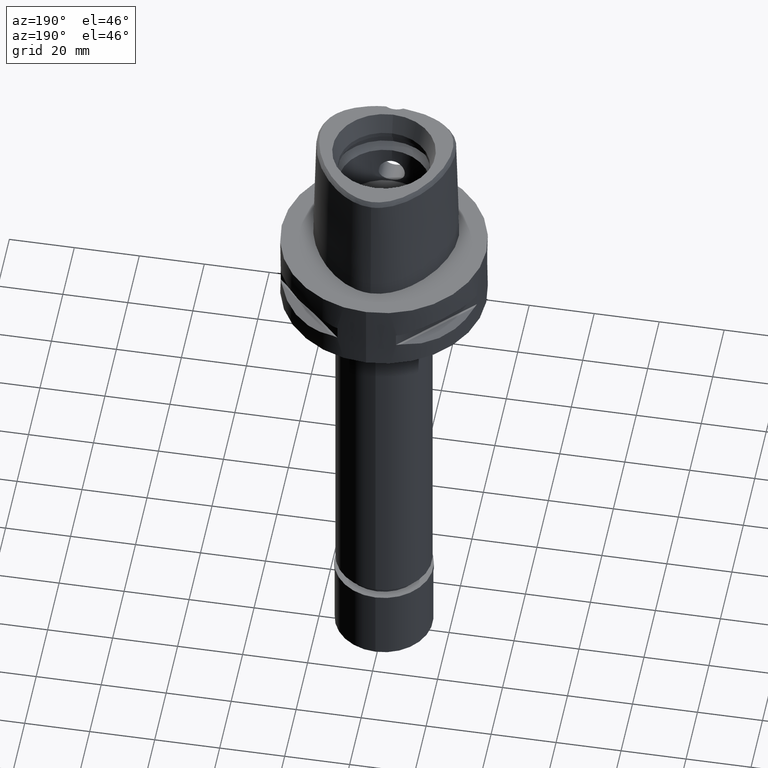
[diagram: clean part render]
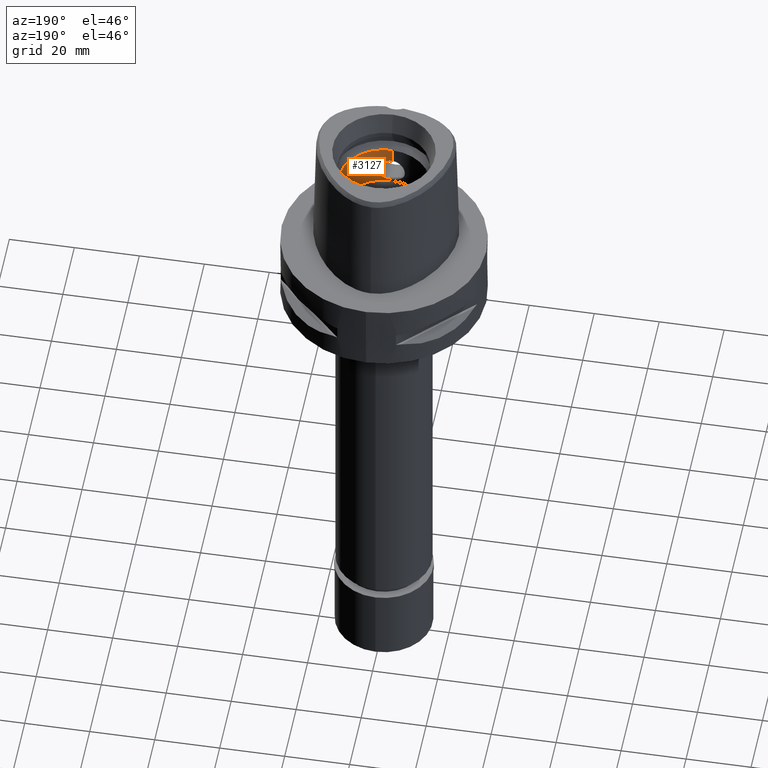
[diagram: same view with one face highlighted and labeled with its STEP entity id]
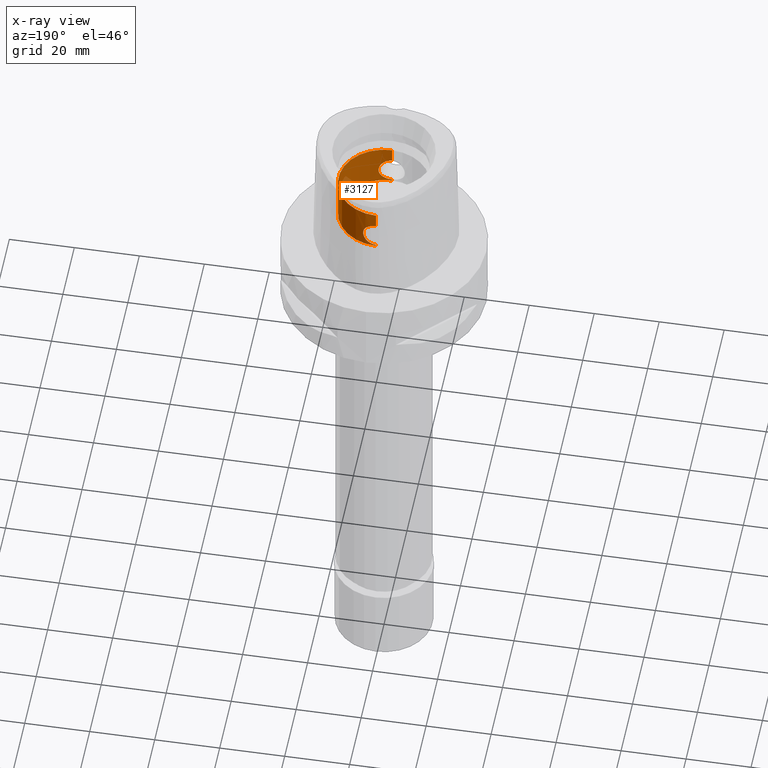
[diagram: x-ray of the same camera — body ghosted, the highlighted face saturated]
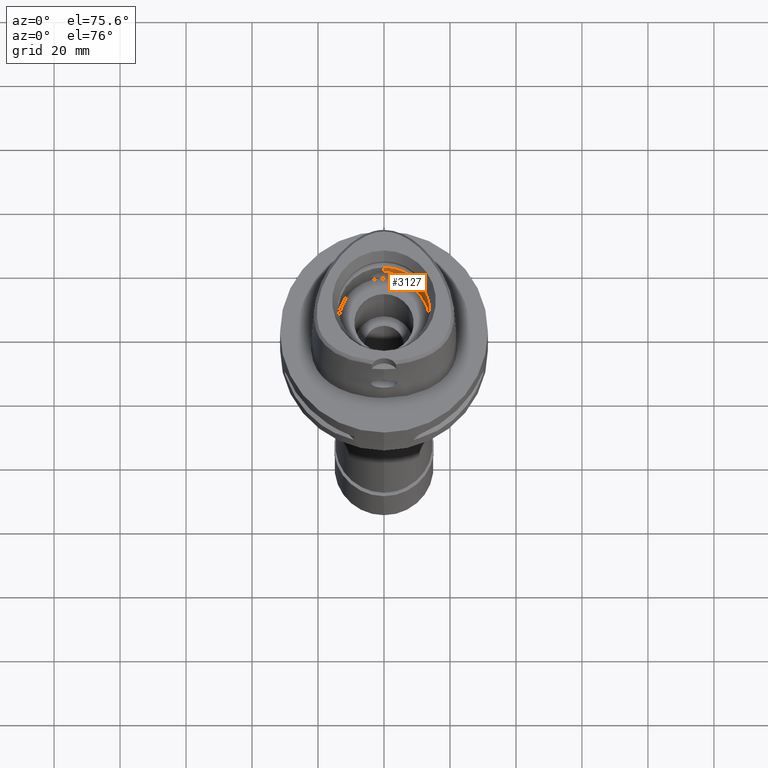
[diagram: same view with one face highlighted and labeled with its STEP entity id]
A machine part, auxiliary view. The second image highlights one B-rep face of the part: STEP entity #3127.
The next image is the same camera in x-ray: the body ghosted, the highlighted face saturated — about 9% of this face is hidden behind the body in this view.
A second angle (auxiliary view) of the same face is appended — the face is thin or edge-on in the first view.
In plain terms, the highlighted cylindrical surface (partial cylindrical patch) has radius 14 mm, axis along (0, 0, -1).
Its self-contained STEP definition (entity closure, byte-faithful):
#7 = CARTESIAN_POINT ( 'NONE',  ( 2.128132661560468097, -13.83734705126276943, 18.94611731529635890 ) ) ;
#27 = CARTESIAN_POINT ( 'NONE',  ( 1.419273682516925206, 13.92782810608995625, 11.70655701251878789 ) ) ;
#33 = CARTESIAN_POINT ( 'NONE',  ( 2.217825895405038938, -13.82320329824289473, 18.88877091521866092 ) ) ;
#42 = CARTESIAN_POINT ( 'NONE',  ( 2.128115661502098632, 13.83734960245050161, 12.05387220701158668 ) ) ;
#57 = CARTESIAN_POINT ( 'NONE',  ( 0.0000000000000000000, 14.00000000000000000, 11.00000000000000000 ) ) ;
#61 = CARTESIAN_POINT ( 'NONE',  ( 3.701448599127524108, 13.50196410077353448, 13.85577559946501047 ) ) ;
#71 = CARTESIAN_POINT ( 'NONE',  ( 3.641267411179716973, -13.51833533351320860, 17.27419309983596563 ) ) ;
#88 = CARTESIAN_POINT ( 'NONE',  ( 3.612092317030220379, 13.52616139818937846, 13.66702611687112956 ) ) ;
#89 = CARTESIAN_POINT ( 'NONE',  ( 3.300146341830308749, -13.60553517926693168, 17.84781835524496785 ) ) ;
#113 = CARTESIAN_POINT ( 'NONE',  ( 2.230267356648572896, 13.82120012601264136, 12.11940589182371220 ) ) ;
#124 = CARTESIAN_POINT ( 'NONE',  ( 2.619693227442611239, -13.75270887469176984, 18.58958572220459970 ) ) ;
#137 = CARTESIAN_POINT ( 'NONE',  ( 3.410721871959659257, 13.57817107781601074, 17.68404181484999071 ) ) ;
#169 = CARTESIAN_POINT ( 'NONE',  ( 3.253150413770078409, -13.61695205281290200, 17.91296083935737826 ) ) ;
#175 = CARTESIAN_POINT ( 'NONE',  ( 4.027167981726239354, -13.40875010521662780, 14.99686531048723204 ) ) ;
#192 = CARTESIAN_POINT ( 'NONE',  ( 2.474897425330298883, 13.77946391610721300, 18.70653994269108011 ) ) ;
#213 = CARTESIAN_POINT ( 'NONE',  ( 0.0000000000000000000, 14.00000000000000000, 19.55000000000000071 ) ) ;
#236 = CARTESIAN_POINT ( 'NONE',  ( 1.643124464775751692, -13.90317117702391059, 11.79805916109248187 ) ) ;
#238 = CARTESIAN_POINT ( 'NONE',  ( 3.377713256182831802, 13.58640893255668480, 17.73462749921339565 ) ) ;
#254 = CARTESIAN_POINT ( 'NONE',  ( 1.499090398657561440, -13.91942988264788639, 19.26238249073475473 ) ) ;
#278 = CARTESIAN_POINT ( 'NONE',  ( 4.049890164046381358, -13.40142381086357126, 15.25144457815123467 ) ) ;
#281 = CARTESIAN_POINT ( 'NONE',  ( 1.994209348676432958, -13.85732070570753471, 19.02567586479972661 ) ) ;
#290 = CARTESIAN_POINT ( 'NONE',  ( 3.410743496005227193, -13.57816568317720929, 13.31599196305548993 ) ) ;
#313 = CARTESIAN_POINT ( 'NONE',  ( 3.144649004617911192, -13.64249969677155683, 12.94694166698170257 ) ) ;
#343 = VECTOR ( 'NONE', #2762, 1000.000000000000000 ) ;
#345 = CARTESIAN_POINT ( 'NONE',  ( 3.386236333451225544, -13.58428775399380228, 13.27830608082098607 ) ) ;
#359 = CARTESIAN_POINT ( 'NONE',  ( 1.210730804332083466, -13.94747211364479789, 19.36537636554719910 ) ) ;
#367 = CARTESIAN_POINT ( 'NONE',  ( 3.737887346439032754, -13.49190726130635909, 17.05908841074957039 ) ) ;
#398 = CARTESIAN_POINT ( 'NONE',  ( 3.362135645915919735, 13.59026426608101623, 13.24199978628648466 ) ) ;
#414 = CARTESIAN_POINT ( 'NONE',  ( 3.731972597725385477, -13.49354487605745589, 17.07319389047551539 ) ) ;
#425 = CARTESIAN_POINT ( 'NONE',  ( 1.017647129622376134, 13.96323008892529138, 11.57763991488771715 ) ) ;
#443 = CARTESIAN_POINT ( 'NONE',  ( 1.467188112033413816, 13.92282148873381864, 11.72506250693289864 ) ) ;
#452 = CARTESIAN_POINT ( 'NONE',  ( 3.362175151425315534, -13.59025468045932072, 17.75794138953405366 ) ) ;
#466 = CARTESIAN_POINT ( 'NONE',  ( 2.083402352693820347, 13.84411649686240153, 12.02679904731587435 ) ) ;
#480 = EDGE_CURVE ( 'NONE', #4492, #2264, #4187, .T. ) ;
#495 = CARTESIAN_POINT ( 'NONE',  ( 3.361880068163155766, 13.59032751575134057, 13.24162249144547943 ) ) ;
#514 = VERTEX_POINT ( 'NONE', #2345 ) ;
#522 = CARTESIAN_POINT ( 'NONE',  ( 3.557088666341913452, 13.54068383479801696, 17.43752651043655888 ) ) ;
#542 = CARTESIAN_POINT ( 'NONE',  ( 3.471388650637377449, 13.56282351116202278, 17.58642340598301246 ) ) ;
#544 = CARTESIAN_POINT ( 'NONE',  ( 3.217051634125119630, -13.62560167973527925, 17.96121095383637112 ) ) ;
#570 = CARTESIAN_POINT ( 'NONE',  ( 1.832682128947450639, 13.87954668815114267, 19.11223895308327414 ) ) ;
#597 = CARTESIAN_POINT ( 'NONE',  ( 1.600065394692234744, 13.90814645047113807, 19.22055538723221702 ) ) ;
#605 = CARTESIAN_POINT ( 'NONE',  ( 0.0000000000000000000, 0.0000000000000000000, 39.89999999999999858 ) ) ;
#621 = CARTESIAN_POINT ( 'NONE',  ( 2.130881178372290297, -13.83743566613834908, 12.05283858997449542 ) ) ;
#630 = DIRECTION ( 'NONE',  ( 0.0000000000000000000, 0.0000000000000000000, 1.000000000000000000 ) ) ;
#635 = CARTESIAN_POINT ( 'NONE',  ( 0.0000000000000000000, -14.00000000000000000, 19.55000000000000071 ) ) ;
#650 = CARTESIAN_POINT ( 'NONE',  ( 0.4996170308321704057, -14.00000000000000533, 11.45000000000000107 ) ) ;
#668 = CARTESIAN_POINT ( 'NONE',  ( 1.935032715135688530, -13.86568800702951521, 19.05844582712813562 ) ) ;
#673 = ORIENTED_EDGE ( 'NONE', *, *, #480, .F. ) ;
#682 = CARTESIAN_POINT ( 'NONE',  ( 3.649300474006761608, -13.51628050930860425, 13.73856294209829443 ) ) ;
#706 = CARTESIAN_POINT ( 'NONE',  ( 0.0000000000000000000, 14.00000000000000000, 19.55000000000000071 ) ) ;
#727 = CARTESIAN_POINT ( 'NONE',  ( 3.754236443715380567, -13.48734669256756113, 13.98069631228726095 ) ) ;
#741 = VECTOR ( 'NONE', #2009, 1000.000000000000000 ) ;
#778 = DIRECTION ( 'NONE',  ( 0.0000000000000000000, 1.000000000000000000, 0.0000000000000000000 ) ) ;
#784 = CARTESIAN_POINT ( 'NONE',  ( 3.300115213668325165, 13.60554254247755246, 13.15213791935524590 ) ) ;
#804 = CARTESIAN_POINT ( 'NONE',  ( 3.681888265789251768, 13.50730898608306596, 13.81262890101244345 ) ) ;
#831 = CARTESIAN_POINT ( 'NONE',  ( 2.225288147325894528, 13.82200341650443498, 12.11612460655873313 ) ) ;
#841 = CARTESIAN_POINT ( 'NONE',  ( 3.518056051408226637, -13.55098508629760801, 17.51091968135015264 ) ) ;
#848 = CARTESIAN_POINT ( 'NONE',  ( 2.824278146734877204, -13.71216806335186611, 18.40282419414445059 ) ) ;
#854 = CARTESIAN_POINT ( 'NONE',  ( 3.740349717813418629, 13.49122537259350985, 13.94682241177603288 ) ) ;
#855 = CARTESIAN_POINT ( 'NONE',  ( 3.359058616896186233, -13.59102609449553611, 17.76257193801029999 ) ) ;
#879 = CARTESIAN_POINT ( 'NONE',  ( 3.518019159262221862, 13.55099469856486749, 13.48901570195362432 ) ) ;
#883 = CARTESIAN_POINT ( 'NONE',  ( 3.927475894208720675, -13.43840014692434259, 16.52342187618989300 ) ) ;
#888 = CYLINDRICAL_SURFACE ( 'NONE', #3665, 14.00000000000000000 ) ;
#937 = CARTESIAN_POINT ( 'NONE',  ( 3.649287754606132417, 13.51628378879347814, 17.26146357314931024 ) ) ;
#942 = CARTESIAN_POINT ( 'NONE',  ( 3.850575600135912158, -13.46063562734230601, 16.78609245255456628 ) ) ;
#961 = CARTESIAN_POINT ( 'NONE',  ( 3.267839164474154234, 13.61368337661979133, 17.89612675440678657 ) ) ;
#963 = CARTESIAN_POINT ( 'NONE',  ( 3.321853759922872129, -13.60021613420336095, 17.81705094764194186 ) ) ;
#992 = CARTESIAN_POINT ( 'NONE',  ( 2.286392394009954199, 13.81203773452794792, 18.84292893667480584 ) ) ;
#1011 = CARTESIAN_POINT ( 'NONE',  ( 2.705656092646467226, -13.73601936352752340, 18.51386516677751359 ) ) ;
#1022 = CARTESIAN_POINT ( 'NONE',  ( 3.702139074867384139, -13.50182043942416854, 13.85345734750486990 ) ) ;
#1023 = CARTESIAN_POINT ( 'NONE',  ( 2.935444872375262637, 13.68884853175270422, 18.29060286011752723 ) ) ;
#1027 = CARTESIAN_POINT ( 'NONE',  ( 0.0000000000000000000, -14.00000000000000000, 11.44999999999999929 ) ) ;
#1032 = EDGE_CURVE ( 'NONE', #514, #1204, #2256, .T. ) ;
#1035 = CARTESIAN_POINT ( 'NONE',  ( 4.050109039351203144, -13.40137442886974917, 15.74496307463717493 ) ) ;
#1050 = CARTESIAN_POINT ( 'NONE',  ( 1.571471244912584497, -13.91140584751454234, 11.76727716385062372 ) ) ;
#1056 = VERTEX_POINT ( 'NONE', #1734 ) ;
#1061 = CARTESIAN_POINT ( 'NONE',  ( 0.0000000000000000000, 14.00000000000000000, 11.00000000000000000 ) ) ;
#1078 = VERTEX_POINT ( 'NONE', #1702 ) ;
#1079 = CARTESIAN_POINT ( 'NONE',  ( 2.010509632126467050, -13.85534039797923711, 11.98171533897966334 ) ) ;
#1107 = CARTESIAN_POINT ( 'NONE',  ( 2.632435958151018163, -13.75053331397524126, 12.41927859746139440 ) ) ;
#1129 = CARTESIAN_POINT ( 'NONE',  ( 3.864698997106321698, -13.45627842727308376, 14.28708901172944046 ) ) ;
#1142 = CARTESIAN_POINT ( 'NONE',  ( 1.017639181789193437, -13.96323047955135799, 19.42236212087125935 ) ) ;
#1187 = DIRECTION ( 'NONE',  ( 0.0000000000000000000, 0.0000000000000000000, -1.000000000000000000 ) ) ;
#1190 = DIRECTION ( 'NONE',  ( 0.0000000000000000000, 0.0000000000000000000, 1.000000000000000000 ) ) ;
#1194 = CARTESIAN_POINT ( 'NONE',  ( 3.446439376995800608, 13.56939223702177699, 13.36783492912207905 ) ) ;
#1204 = VERTEX_POINT ( 'NONE', #706 ) ;
#1212 = CARTESIAN_POINT ( 'NONE',  ( 4.027216825694031499, 13.40877103518722357, 14.99603235332364903 ) ) ;
#1234 = CARTESIAN_POINT ( 'NONE',  ( 3.217025596349118555, 13.62560769370299951, 13.03875506105696758 ) ) ;
#1259 = CARTESIAN_POINT ( 'NONE',  ( 3.354680329558042740, 13.59210945296616124, 13.23093247310055709 ) ) ;
#1260 = CARTESIAN_POINT ( 'NONE',  ( 3.092415008874853211, -13.65466569417765008, 18.11866219977504144 ) ) ;
#1271 = CARTESIAN_POINT ( 'NONE',  ( 3.446478207128052862, -13.56938250736487639, 17.63210248792501034 ) ) ;
#1281 = EDGE_CURVE ( 'NONE', #1778, #3125, #2539, .T. ) ;
#1282 = CARTESIAN_POINT ( 'NONE',  ( 1.935022422099377248, 13.86568947271855201, 11.94154862979159937 ) ) ;
#1283 = CARTESIAN_POINT ( 'NONE',  ( 3.344238891824591331, -13.59469201712063224, 17.78446291341362695 ) ) ;
#1301 = CARTESIAN_POINT ( 'NONE',  ( 3.329833399432507335, 13.59830740143285155, 17.80689756936500245 ) ) ;
#1353 = CARTESIAN_POINT ( 'NONE',  ( 3.098494805694566256, 13.65307097543445813, 18.10922060507405362 ) ) ;
#1375 = CARTESIAN_POINT ( 'NONE',  ( 2.255317399664305000, 13.81714987027313235, 18.86393579140712973 ) ) ;
#1430 = CARTESIAN_POINT ( 'NONE',  ( 3.792123985366229633, -13.47677720437101279, 14.07719458706809412 ) ) ;
#1453 = CARTESIAN_POINT ( 'NONE',  ( 3.381275431635352380, -13.58552310374970595, 13.27076317276037720 ) ) ;
#1528 = CARTESIAN_POINT ( 'NONE',  ( 3.750535583141483720, -13.48837563529048467, 13.97158931176262264 ) ) ;
#1588 = CARTESIAN_POINT ( 'NONE',  ( 2.564495781835727684, 13.76306347781942740, 12.36466282433596042 ) ) ;
#1607 = CARTESIAN_POINT ( 'NONE',  ( 1.643405570493256196, 13.90359095056343719, 11.79642487328022149 ) ) ;
#1628 = CARTESIAN_POINT ( 'NONE',  ( 3.792115437646679243, 13.47677934324684657, 16.92282825343409058 ) ) ;
#1657 = CARTESIAN_POINT ( 'NONE',  ( 0.2481266265099588697, 14.00000000000000000, 11.44999999999999929 ) ) ;
#1677 = CARTESIAN_POINT ( 'NONE',  ( 2.837973772893474411, 13.70934612522084173, 12.61054438063453098 ) ) ;
#1702 = CARTESIAN_POINT ( 'NONE',  ( 0.0000000000000000000, 14.00000000000000000, 24.19999999999999929 ) ) ;
#1734 = CARTESIAN_POINT ( 'NONE',  ( 0.0000000000000000000, -14.00000000000000000, 24.19999999999999929 ) ) ;
#1761 = CARTESIAN_POINT ( 'NONE',  ( 2.749412118830250940, 13.72794699207909908, 18.47891641197558243 ) ) ;
#1778 = VERTEX_POINT ( 'NONE', #57 ) ;
#1786 = CARTESIAN_POINT ( 'NONE',  ( 1.559041427489886278, 13.91280564626705818, 19.23793945981500997 ) ) ;
#1815 = CARTESIAN_POINT ( 'NONE',  ( 2.903830259282267345, -13.69557610160722660, 12.67649343714048804 ) ) ;
#1864 = CARTESIAN_POINT ( 'NONE',  ( 3.098515382225266901, -13.65306636109957594, 12.89080379894812900 ) ) ;
#1881 = ORIENTED_EDGE ( 'NONE', *, *, #1281, .T. ) ;
#1890 = CARTESIAN_POINT ( 'NONE',  ( 3.267860857267358643, -13.61367823512106767, 13.10390269945182773 ) ) ;
#1897 = CIRCLE ( 'NONE', #4155, 14.00000000000000000 ) ;
#1916 = CARTESIAN_POINT ( 'NONE',  ( 3.393648836096402555, -13.58244002077571011, 13.28961777952453183 ) ) ;
#1952 = LINE ( 'NONE', #4459, #3675 ) ;
#1968 = CARTESIAN_POINT ( 'NONE',  ( 3.737862436382984210, 13.49191471466118131, 13.94085186772397122 ) ) ;
#1993 = CARTESIAN_POINT ( 'NONE',  ( 2.206585077432667852, 13.82500562469161487, 12.10388135703218460 ) ) ;
#2009 = DIRECTION ( 'NONE',  ( 0.0000000000000000000, 0.0000000000000000000, 1.000000000000000000 ) ) ;
#2012 = CARTESIAN_POINT ( 'NONE',  ( 2.749405349986303371, 13.72738952680676761, 12.52574890524282303 ) ) ;
#2023 = CARTESIAN_POINT ( 'NONE',  ( 3.612125191162198767, -13.52615234759679552, 17.33290907843088036 ) ) ;
#2035 = CARTESIAN_POINT ( 'NONE',  ( 1.994196793350470953, 13.85732250606946003, 11.97431708272922002 ) ) ;
#2055 = CARTESIAN_POINT ( 'NONE',  ( 0.0000000000000000000, 0.0000000000000000000, 24.19999999999999929 ) ) ;
#2061 = CARTESIAN_POINT ( 'NONE',  ( 1.499100513058812201, 13.91942902670013638, 11.73762153891946447 ) ) ;
#2085 = CARTESIAN_POINT ( 'NONE',  ( 2.010501717821064460, 13.85534156541368667, 19.01828921528356986 ) ) ;
#2105 = ORIENTED_EDGE ( 'NONE', *, *, #4786, .F. ) ;
#2109 = CARTESIAN_POINT ( 'NONE',  ( 1.686542341523468602, 13.89794981159688980, 19.18226932052732536 ) ) ;
#2119 = CARTESIAN_POINT ( 'NONE',  ( 2.225307842472947772, -13.82200032481087959, 18.88386244170613537 ) ) ;
#2141 = CARTESIAN_POINT ( 'NONE',  ( 1.643112089889030569, 13.90317243032712291, 19.20194634168781533 ) ) ;
#2164 = CARTESIAN_POINT ( 'NONE',  ( 0.4996109250117751199, 13.99999999999999822, 19.54999999999999005 ) ) ;
#2173 = DIRECTION ( 'NONE',  ( 0.0000000000000000000, -1.000000000000000000, 0.0000000000000000000 ) ) ;
#2192 = CARTESIAN_POINT ( 'NONE',  ( 3.377736576013190994, -13.58640317541479092, 13.26540774977146775 ) ) ;
#2224 = CARTESIAN_POINT ( 'NONE',  ( 0.0000000000000000000, -14.00000000000000000, 11.44999999999999929 ) ) ;
#2256 = B_SPLINE_CURVE_WITH_KNOTS ( 'NONE', 3,
 ( #4658, #1657, #3514, #2734, #425, #3961, #3182, #27, #443, #2061, #3985, #1607, #2351, #1282, #2035, #466, #42, #4368, #1993, #3536, #831, #113, #4723, #2827, #1588, #3941, #3607, #2012, #3157, #3582, #1677, #2804, #4280, #1234, #3138, #784, #2418, #2398, #1259, #3895, #495, #398, #1194, #879, #88, #3208, #804, #61, #4699, #4348, #1968, #854, #4679, #4747, #1212, #2448, #2756, #4301, #2374, #3923, #2779, #4328, #1628, #3560, #3309, #2899, #4772, #2476, #937, #522, #2547, #542, #4441, #137, #3229, #2959, #4496, #238, #1301, #961, #3286, #1353, #2920, #2877, #1023, #3684, #1761, #2498, #192, #4092, #4466, #4845, #992, #3706, #2521, #2849, #1375, #4064, #2085, #570, #3255, #2109, #2141, #597, #4392, #1786, #3655, #2164, #213 ),
 .UNSPECIFIED., .F., .F.,
 ( 4, 2, 2, 1, 1, 2, 2, 2, 2, 1, 1, 1, 2, 2, 2, 2, 1, 2, 2, 2, 2, 1, 1, 1, 2, 2, 2, 2, 1, 1, 2, 2, 2, 2, 2, 2, 1, 1, 1, 2, 2, 2, 2, 1, 1, 1, 2, 2, 2, 2, 2, 2, 2, 2, 1, 1, 1, 2, 2, 2, 2, 1, 2, 2, 4 ),
 ( 0.0000000000000000000, 0.06250000000002138567, 0.09375000000003208545, 0.1093750000000373868, 0.1171875000000400235, 0.1210937500000413142, 0.1250000000000425771, 0.1562500000000529021, 0.1718750000000581479, 0.1796875000000608402, 0.1835937500000622002, 0.1855468750000628664, 0.1865234375000631162, 0.1875000000000633660, 0.2187500000000720257, 0.2343750000000762446, 0.2421875000000783817, 0.2460937500000794087, 0.2500000000000804357, 0.2812500000000883738, 0.2968750000000922040, 0.3046875000000943134, 0.3085937500000953126, 0.3105468750000957567, 0.3115234375000957012, 0.3125000000000956457, 0.3437500000000897615, 0.3593750000000867639, 0.3671875000000850986, 0.3710937500000843214, 0.3730468750000841549, 0.3750000000000839884, 0.4375000000000763833, 0.5000000000000687228, 0.5625000000000610623, 0.5937500000000568434, 0.6093750000000547340, 0.6171875000000537348, 0.6210937500000535127, 0.6230468750000534017, 0.6250000000000532907, 0.6562500000000528466, 0.6718750000000526246, 0.6796875000000521805, 0.6835937500000519584, 0.6855468750000521805, 0.6865234375000519584, 0.6875000000000517364, 0.7187500000000504041, 0.7343750000000500711, 0.7421875000000499600, 0.7500000000000498490, 0.7812500000000496270, 0.7968750000000497380, 0.8046875000000501821, 0.8085937500000504041, 0.8105468750000504041, 0.8115234375000504041, 0.8125000000000504041, 0.8437500000000428546, 0.8593750000000391909, 0.8671875000000375255, 0.8710937500000365263, 0.8750000000000355271, 1.000000000000000000 ),
 .UNSPECIFIED. ) ;
#2264 = VERTEX_POINT ( 'NONE', #1027 ) ;
#2295 = CARTESIAN_POINT ( 'NONE',  ( 2.474909158876553938, -13.77946166284112017, 12.29346908423364582 ) ) ;
#2333 = ORIENTED_EDGE ( 'NONE', *, *, #2795, .T. ) ;
#2345 = CARTESIAN_POINT ( 'NONE',  ( 0.0000000000000000000, 14.00000000000000000, 11.44999999999999929 ) ) ;
#2351 = CARTESIAN_POINT ( 'NONE',  ( 1.758911448488973184, 13.88947925419896201, 11.84948192320104532 ) ) ;
#2357 = CARTESIAN_POINT ( 'NONE',  ( 2.206604282614726298, -13.82500263684417341, 18.89610616580772273 ) ) ;
#2374 = CARTESIAN_POINT ( 'NONE',  ( 3.953315574815617683, 13.43069190713402961, 16.38937041772095071 ) ) ;
#2398 = CARTESIAN_POINT ( 'NONE',  ( 3.344202712280511136, 13.59470072215733438, 13.21548413948281997 ) ) ;
#2418 = CARTESIAN_POINT ( 'NONE',  ( 3.321820541935854187, 13.60022405027051562, 13.18290148898179837 ) ) ;
#2430 = CARTESIAN_POINT ( 'NONE',  ( 3.681917144197214498, -13.50730066061284873, 17.18730806969945135 ) ) ;
#2448 = CARTESIAN_POINT ( 'NONE',  ( 4.050104837865987406, 13.40137507185002264, 15.25494482419060205 ) ) ;
#2454 = CARTESIAN_POINT ( 'NONE',  ( 4.027223470520464588, -13.40876944169245810, 16.00391502730491311 ) ) ;
#2476 = CARTESIAN_POINT ( 'NONE',  ( 3.702127444390315159, 13.50182339615068727, 17.14656876326777279 ) ) ;
#2498 = CARTESIAN_POINT ( 'NONE',  ( 2.632421440604336027, 13.75053619292203422, 18.58073368517403168 ) ) ;
#2521 = CARTESIAN_POINT ( 'NONE',  ( 2.261340657161257095, 13.81616386827182019, 18.85988797640481351 ) ) ;
#2539 = CIRCLE ( 'NONE', #4973, 14.00000000000000000 ) ;
#2547 = CARTESIAN_POINT ( 'NONE',  ( 3.524199374407259722, 13.54926875963957933, 17.49682897130887227 ) ) ;
#2569 = CARTESIAN_POINT ( 'NONE',  ( 2.993295809226349746, -13.67635858825579653, 12.77154234762751095 ) ) ;
#2593 = CARTESIAN_POINT ( 'NONE',  ( 1.559056483625745448, -13.91280418779705563, 11.76206681924257680 ) ) ;
#2609 = CARTESIAN_POINT ( 'NONE',  ( 0.2481241771357211301, -14.00000000000000000, 19.54999999999999716 ) ) ;
#2626 = CARTESIAN_POINT ( 'NONE',  ( 1.600078814865037113, -13.90814512833036964, 11.77945038585449922 ) ) ;
#2651 = ORIENTED_EDGE ( 'NONE', *, *, #4313, .T. ) ;
#2652 = CARTESIAN_POINT ( 'NONE',  ( 2.255326728032801320, -13.81714821576336760, 12.13607046265439138 ) ) ;
#2674 = CARTESIAN_POINT ( 'NONE',  ( 3.329855790059505605, -13.59830196913217470, 13.19313464255487389 ) ) ;
#2685 = VECTOR ( 'NONE', #630, 1000.000000000000000 ) ;
#2731 = DIRECTION ( 'NONE',  ( 0.0000000000000000000, -1.000000000000000000, 0.0000000000000000000 ) ) ;
#2734 = CARTESIAN_POINT ( 'NONE',  ( 0.8886602406458201653, 13.97198482965736588, 11.54653314444766821 ) ) ;
#2743 = CARTESIAN_POINT ( 'NONE',  ( 0.0000000000000000000, -14.00000000000000000, 11.00000000000000000 ) ) ;
#2756 = CARTESIAN_POINT ( 'NONE',  ( 4.049894426081060317, 13.40142315477328694, 15.74850829864217161 ) ) ;
#2762 = DIRECTION ( 'NONE',  ( 0.0000000000000000000, 0.0000000000000000000, 1.000000000000000000 ) ) ;
#2779 = CARTESIAN_POINT ( 'NONE',  ( 3.864694685434272969, 13.45627952657940796, 16.71292491331624319 ) ) ;
#2795 = EDGE_CURVE ( 'NONE', #4492, #1056, #4744, .T. ) ;
#2804 = CARTESIAN_POINT ( 'NONE',  ( 2.987551070598235103, 13.67820116345343351, 12.75916637442935020 ) ) ;
#2805 = CARTESIAN_POINT ( 'NONE',  ( 3.354718119046004254, -13.59210031745213776, 17.76901166033502477 ) ) ;
#2818 = EDGE_CURVE ( 'NONE', #1056, #1078, #1897, .T. ) ;
#2822 = CARTESIAN_POINT ( 'NONE',  ( 0.0000000000000000000, -14.00000000000000000, 19.55000000000000071 ) ) ;
#2827 = CARTESIAN_POINT ( 'NONE',  ( 2.407026743236367672, 13.79179092510370097, 12.24014823374410454 ) ) ;
#2837 = CARTESIAN_POINT ( 'NONE',  ( 3.361919059606512050, -13.59031805818508332, 17.75831946435189579 ) ) ;
#2839 = ORIENTED_EDGE ( 'NONE', *, *, #1032, .F. ) ;
#2849 = CARTESIAN_POINT ( 'NONE',  ( 2.256421358878216488, 13.81696909001792939, 18.86319363595353593 ) ) ;
#2877 = CARTESIAN_POINT ( 'NONE',  ( 2.993275682879698252, 13.67636296169212606, 18.22847972466929889 ) ) ;
#2899 = CARTESIAN_POINT ( 'NONE',  ( 3.754225769600867846, 13.48734939608367966, 17.01933006533278814 ) ) ;
#2920 = CARTESIAN_POINT ( 'NONE',  ( 3.020660456626143464, 13.67036005578519386, 18.19808468408423963 ) ) ;
#2959 = CARTESIAN_POINT ( 'NONE',  ( 3.386213530919897519, 13.58429339872629527, 17.72172867399999774 ) ) ;
#2980 = CARTESIAN_POINT ( 'NONE',  ( 2.425356293155605414, -13.78827839657718890, 12.25602180728359158 ) ) ;
#2996 = CARTESIAN_POINT ( 'NONE',  ( 1.419263858817291446, -13.92782887280988646, 19.29344666032362099 ) ) ;
#3033 = CARTESIAN_POINT ( 'NONE',  ( 3.471407568666792454, -13.56281871367385605, 13.41360808481812228 ) ) ;
#3058 = CARTESIAN_POINT ( 'NONE',  ( 3.524216153033390420, -13.54926445638730925, 13.50320070291675734 ) ) ;
#3091 = CARTESIAN_POINT ( 'NONE',  ( 1.467178111786428429, -13.92282230864165982, 19.27494137944280794 ) ) ;
#3108 = CARTESIAN_POINT ( 'NONE',  ( 0.0000000000000000000, 0.0000000000000000000, 11.00000000000000000 ) ) ;
#3122 = CARTESIAN_POINT ( 'NONE',  ( 0.0000000000000000000, -14.00000000000000000, 19.55000000000000071 ) ) ;
#3125 = VERTEX_POINT ( 'NONE', #4374 ) ;
#3127 = ADVANCED_FACE ( 'NONE', ( #4474 ), #888, .F. ) ;
#3138 = CARTESIAN_POINT ( 'NONE',  ( 3.253122838619350254, 13.61695847484784849, 13.08700209496323019 ) ) ;
#3157 = CARTESIAN_POINT ( 'NONE',  ( 2.794188265665984883, 13.71831884113747613, 12.56820068599706985 ) ) ;
#3182 = CARTESIAN_POINT ( 'NONE',  ( 1.307187133397777368, 13.93893568339380096, 11.66569962606505406 ) ) ;
#3208 = CARTESIAN_POINT ( 'NONE',  ( 3.641236061999908014, 13.51834413261587109, 13.72574250724094469 ) ) ;
#3229 = CARTESIAN_POINT ( 'NONE',  ( 3.393626394335426788, 13.58244558944580405, 17.71041667753680571 ) ) ;
#3236 = CARTESIAN_POINT ( 'NONE',  ( 2.230287417959641694, -13.82119696819911958, 18.88058087293834930 ) ) ;
#3255 = CARTESIAN_POINT ( 'NONE',  ( 1.773859858298503012, 13.88717310935475524, 19.14143527715514992 ) ) ;
#3265 = CARTESIAN_POINT ( 'NONE',  ( 2.407040127156084175, -13.79178862307484899, 18.75984205953191264 ) ) ;
#3286 = CARTESIAN_POINT ( 'NONE',  ( 3.144628172867338201, 13.64250443836072435, 18.05308396090352474 ) ) ;
#3292 = DIRECTION ( 'NONE',  ( 0.0000000000000000000, 0.0000000000000000000, -1.000000000000000000 ) ) ;
#3309 = CARTESIAN_POINT ( 'NONE',  ( 3.760688074393179203, 13.48555087701916833, 17.00326317844757540 ) ) ;
#3363 = CARTESIAN_POINT ( 'NONE',  ( 1.832691376668475369, -13.87954557477466722, 11.88776574650866991 ) ) ;
#3376 = CARTESIAN_POINT ( 'NONE',  ( 1.516899316939854581, -13.91750090884298352, 19.25522928305483816 ) ) ;
#3388 = CARTESIAN_POINT ( 'NONE',  ( 2.268773195248865004, -13.81494468101088557, 12.14511832100865263 ) ) ;
#3401 = CARTESIAN_POINT ( 'NONE',  ( 2.083417932607754430, -13.84411419574152902, 18.97319161947384458 ) ) ;
#3411 = CARTESIAN_POINT ( 'NONE',  ( 2.286401869744580484, -13.81203602590156621, 12.15707754361575255 ) ) ;
#3438 = CARTESIAN_POINT ( 'NONE',  ( 2.261349992690711908, -13.81616220669344131, 12.14011830678639647 ) ) ;
#3462 = CARTESIAN_POINT ( 'NONE',  ( 2.322876848913191683, -13.80594766828286524, 12.18218411285366010 ) ) ;
#3514 = CARTESIAN_POINT ( 'NONE',  ( 0.5031375785651610588, 13.99299620741434325, 11.47286437004442305 ) ) ;
#3536 = CARTESIAN_POINT ( 'NONE',  ( 2.217806395109848783, 13.82320634840191609, 12.11121632281193605 ) ) ;
#3545 = CARTESIAN_POINT ( 'NONE',  ( 2.180430719042663945, -13.82916524275329806, 18.91303019141079744 ) ) ;
#3560 = CARTESIAN_POINT ( 'NONE',  ( 3.770295828577627351, 13.48287449147565376, 16.97915267913733572 ) ) ;
#3573 = ORIENTED_EDGE ( 'NONE', *, *, #4289, .F. ) ;
#3582 = CARTESIAN_POINT ( 'NONE',  ( 2.824245245329735532, 13.71217485459649943, 12.59714380724674676 ) ) ;
#3607 = CARTESIAN_POINT ( 'NONE',  ( 2.705631081828257845, 13.73602433004955259, 12.48611241062261534 ) ) ;
#3637 = CARTESIAN_POINT ( 'NONE',  ( 2.312907190661671830, -13.80784060208822339, 18.82598581439722807 ) ) ;
#3655 = CARTESIAN_POINT ( 'NONE',  ( 1.029184106487188499, 13.97152837429127814, 19.45627297032396186 ) ) ;
#3657 = CARTESIAN_POINT ( 'NONE',  ( 2.987578035406218468, -13.67819521537284366, 18.24080360137144297 ) ) ;
#3665 = AXIS2_PLACEMENT_3D ( 'NONE', #605, #3292, #2173 ) ;
#3675 = VECTOR ( 'NONE', #3968, 1000.000000000000000 ) ;
#3684 = CARTESIAN_POINT ( 'NONE',  ( 2.903809840836996337, 13.69558042595941671, 18.32352754237540182 ) ) ;
#3706 = CARTESIAN_POINT ( 'NONE',  ( 2.268763823005850444, 13.81494635581264063, 18.85488801691585081 ) ) ;
#3721 = CARTESIAN_POINT ( 'NONE',  ( 2.749433056058586011, -13.72738395001388945, 18.47422555713615466 ) ) ;
#3733 = CARTESIAN_POINT ( 'NONE',  ( 1.773869829220215522, -13.88717198021215360, 11.85856959828370982 ) ) ;
#3752 = CARTESIAN_POINT ( 'NONE',  ( 0.8886530554434839413, -13.97198512727722708, 19.45346844018241939 ) ) ;
#3785 = CARTESIAN_POINT ( 'NONE',  ( 2.356179768473787295, -13.80026442335244496, 12.20580376806009504 ) ) ;
#3815 = CARTESIAN_POINT ( 'NONE',  ( 3.953314660153793181, -13.43069195178042641, 14.61062672908327542 ) ) ;
#3841 = CARTESIAN_POINT ( 'NONE',  ( 3.922079205947585745, -13.43983130147406690, 14.48117699423214688 ) ) ;
#3895 = CARTESIAN_POINT ( 'NONE',  ( 3.359020109898814610, 13.59103542221254735, 13.23737089536243872 ) ) ;
#3904 = LINE ( 'NONE', #2743, #343 ) ;
#3911 = CARTESIAN_POINT ( 'NONE',  ( 3.723011875672144644, -13.49602288719113297, 17.09439534801112970 ) ) ;
#3923 = CARTESIAN_POINT ( 'NONE',  ( 3.922078288965881399, 13.43983163058567598, 16.51882742556871264 ) ) ;
#3941 = CARTESIAN_POINT ( 'NONE',  ( 2.619673022922138994, 13.75271275996641940, 12.41039726462985016 ) ) ;
#3961 = CARTESIAN_POINT ( 'NONE',  ( 1.210739730854810459, 13.94747155560755481, 11.63462642380360457 ) ) ;
#3968 = DIRECTION ( 'NONE',  ( 0.0000000000000000000, 0.0000000000000000000, 1.000000000000000000 ) ) ;
#3985 = CARTESIAN_POINT ( 'NONE',  ( 1.516910412645901429, 13.91749993127318064, 11.74477520274085229 ) ) ;
#4037 = CARTESIAN_POINT ( 'NONE',  ( 2.838009928929325021, -13.70933862723026486, 18.38942009771758990 ) ) ;
#4043 = CARTESIAN_POINT ( 'NONE',  ( 2.564513564677239454, -13.76306012765056863, 18.63532267610442972 ) ) ;
#4064 = CARTESIAN_POINT ( 'NONE',  ( 2.130873031675732943, 13.83743700475326222, 18.94716637659228908 ) ) ;
#4081 = CARTESIAN_POINT ( 'NONE',  ( 3.740374405820741543, -13.49121797331917527, 17.05311813184873415 ) ) ;
#4092 = CARTESIAN_POINT ( 'NONE',  ( 2.425345327374605287, 13.78828047748906549, 18.74398637652861765 ) ) ;
#4117 = CARTESIAN_POINT ( 'NONE',  ( 2.256430671639759300, -13.81696743697228946, 12.13681261213153029 ) ) ;
#4140 = CARTESIAN_POINT ( 'NONE',  ( 1.029195579474304623, -13.97152789805618411, 11.54372935801516498 ) ) ;
#4155 = AXIS2_PLACEMENT_3D ( 'NONE', #2055, #1190, #2731 ) ;
#4173 = CARTESIAN_POINT ( 'NONE',  ( 3.833378784130643702, -13.46518651548722900, 14.19006897790624677 ) ) ;
#4187 = B_SPLINE_CURVE_WITH_KNOTS ( 'NONE', 3,
 ( #635, #2609, #4614, #3752, #1142, #359, #4637, #2996, #3091, #254, #3376, #4915, #4532, #668, #281, #3401, #7, #3545, #2357, #33, #2119, #3236, #3637, #3265, #4043, #124, #1011, #3721, #4548, #848, #4037, #3657, #1260, #544, #169, #89, #963, #1283, #2805, #855, #2837, #452, #1271, #841, #2023, #71, #2430, #4864, #3911, #414, #367, #4081, #942, #883, #2454, #1035, #278, #175, #3815, #3841, #1129, #4173, #1430, #4495, #4221, #727, #1528, #1022, #682, #4544, #3058, #3033, #4901, #290, #1916, #345, #1453, #2192, #2674, #1890, #313, #1864, #4518, #2569, #4579, #1815, #5002, #1107, #2295, #2980, #3785, #3462, #3411, #3388, #3438, #4117, #2652, #621, #1079, #3363, #3733, #4951, #236, #2626, #1050, #2593, #4140, #650, #2224 ),
 .UNSPECIFIED., .F., .F.,
 ( 4, 2, 2, 1, 1, 2, 2, 2, 2, 1, 1, 1, 2, 2, 2, 2, 1, 2, 2, 2, 2, 1, 1, 1, 2, 2, 2, 2, 1, 1, 2, 2, 2, 2, 2, 2, 1, 1, 1, 2, 2, 2, 2, 1, 1, 1, 2, 2, 2, 2, 2, 2, 2, 2, 1, 1, 1, 2, 2, 2, 2, 1, 2, 2, 4 ),
 ( 0.0000000000000000000, 0.06250000000000063838, 0.09375000000000095757, 0.1093750000000012629, 0.1171875000000012212, 0.1210937500000010963, 0.1250000000000009714, 0.1562499999999999445, 0.1718749999999996392, 0.1796874999999993061, 0.1835937499999988898, 0.1855468749999986400, 0.1865234374999985845, 0.1874999999999985012, 0.2187499999999886202, 0.2343749999999834854, 0.2421874999999809319, 0.2460937499999796829, 0.2499999999999784062, 0.2812499999999713007, 0.2968749999999676925, 0.3046874999999663047, 0.3085937499999655831, 0.3105468749999651390, 0.3115234374999650280, 0.3124999999999649170, 0.3437499999999634737, 0.3593749999999624190, 0.3671874999999623079, 0.3710937499999621969, 0.3730468749999621969, 0.3749999999999621414, 0.4374999999999681366, 0.4999999999999741873, 0.5624999999999806821, 0.5937499999999841238, 0.6093749999999860112, 0.6171874999999867883, 0.6210937499999871214, 0.6230468749999872324, 0.6249999999999873435, 0.6562499999999837907, 0.6718749999999820144, 0.6796874999999811262, 0.6835937499999804601, 0.6855468749999801270, 0.6865234374999800160, 0.6874999999999799050, 0.7187499999999806821, 0.7343749999999810152, 0.7421874999999810152, 0.7499999999999811262, 0.7812499999999815703, 0.7968749999999815703, 0.8046874999999815703, 0.8085937499999814593, 0.8105468749999815703, 0.8115234374999815703, 0.8124999999999815703, 0.8437499999999843459, 0.8593749999999856781, 0.8671874999999863443, 0.8710937499999866773, 0.8749999999999870104, 1.000000000000000000 ),
 .UNSPECIFIED. ) ;
#4221 = CARTESIAN_POINT ( 'NONE',  ( 3.760698389519647300, -13.48554827042933013, 13.99676262889636646 ) ) ;
#4280 = CARTESIAN_POINT ( 'NONE',  ( 3.092390698714773567, 13.65467114209335264, 12.88130927472243847 ) ) ;
#4289 = EDGE_CURVE ( 'NONE', #1204, #1078, #1952, .T. ) ;
#4301 = CARTESIAN_POINT ( 'NONE',  ( 4.027172463322592044, 13.40874935841158333, 16.00310739076642363 ) ) ;
#4313 = EDGE_CURVE ( 'NONE', #3125, #2264, #3904, .T. ) ;
#4328 = CARTESIAN_POINT ( 'NONE',  ( 3.833372613769522541, 13.46518805228033244, 16.80994934954906128 ) ) ;
#4348 = CARTESIAN_POINT ( 'NONE',  ( 3.731947233726997659, 13.49355243646696678, 13.92674594029439028 ) ) ;
#4368 = CARTESIAN_POINT ( 'NONE',  ( 2.180412222332861027, 13.82916808513869356, 12.08695799697060025 ) ) ;
#4374 = CARTESIAN_POINT ( 'NONE',  ( 0.0000000000000000000, -14.00000000000000000, 11.00000000000000000 ) ) ;
#4392 = CARTESIAN_POINT ( 'NONE',  ( 1.571457089741343793, 13.91140721977019368, 19.23272879698699001 ) ) ;
#4441 = CARTESIAN_POINT ( 'NONE',  ( 3.444114222038757500, 13.56977022798827548, 17.63138026178977569 ) ) ;
#4459 = CARTESIAN_POINT ( 'NONE',  ( 0.0000000000000000000, 14.00000000000000000, 19.55000000000000071 ) ) ;
#4466 = CARTESIAN_POINT ( 'NONE',  ( 2.356169659980356990, 13.80026630004203447, 18.79420345841271711 ) ) ;
#4474 = FACE_OUTER_BOUND ( 'NONE', #4867, .T. ) ;
#4492 = VERTEX_POINT ( 'NONE', #3122 ) ;
#4495 = CARTESIAN_POINT ( 'NONE',  ( 3.770305607771647693, -13.48287202863806478, 14.02087226161732580 ) ) ;
#4496 = CARTESIAN_POINT ( 'NONE',  ( 3.381252386275208188, 13.58552879951880676, 17.72927178203262955 ) ) ;
#4518 = CARTESIAN_POINT ( 'NONE',  ( 3.020680690464510931, -13.67035562325839493, 12.80193796149488428 ) ) ;
#4528 = LINE ( 'NONE', #1061, #2685 ) ;
#4532 = CARTESIAN_POINT ( 'NONE',  ( 1.758914213597541298, -13.88947879502940630, 19.15051695547473898 ) ) ;
#4544 = CARTESIAN_POINT ( 'NONE',  ( 3.557104273013081741, -13.54067981900847961, 13.56250217921517986 ) ) ;
#4548 = CARTESIAN_POINT ( 'NONE',  ( 2.794219043447354611, -13.71831254960298097, 18.43176999259334181 ) ) ;
#4579 = CARTESIAN_POINT ( 'NONE',  ( 2.935464796525304010, -13.68884427347286881, 12.70941809102784426 ) ) ;
#4610 = ORIENTED_EDGE ( 'NONE', *, *, #2818, .T. ) ;
#4614 = CARTESIAN_POINT ( 'NONE',  ( 0.5031329879058820120, -13.99299628181930721, 19.52713608391256628 ) ) ;
#4637 = CARTESIAN_POINT ( 'NONE',  ( 1.307177758755648345, -13.93893633211207828, 19.33430355925596444 ) ) ;
#4658 = CARTESIAN_POINT ( 'NONE',  ( 0.0000000000000000000, 14.00000000000000000, 11.44999999999999929 ) ) ;
#4679 = CARTESIAN_POINT ( 'NONE',  ( 3.850558670354384372, 13.46064117905768498, 14.21385490519483774 ) ) ;
#4699 = CARTESIAN_POINT ( 'NONE',  ( 3.722985834075813294, 13.49603060517026876, 13.90554383511542191 ) ) ;
#4723 = CARTESIAN_POINT ( 'NONE',  ( 2.312892876173468171, 13.80784294826023206, 12.17400404921139589 ) ) ;
#4744 = LINE ( 'NONE', #2822, #741 ) ;
#4747 = CARTESIAN_POINT ( 'NONE',  ( 3.927462924626538232, 13.43840419036665779, 14.47652859066138653 ) ) ;
#4772 = CARTESIAN_POINT ( 'NONE',  ( 3.750524584725995147, 13.48837842770463169, 17.02843767657987328 ) ) ;
#4786 = EDGE_CURVE ( 'NONE', #1778, #514, #4528, .T. ) ;
#4845 = CARTESIAN_POINT ( 'NONE',  ( 2.322867095772036539, 13.80594945643857230, 18.81782271191790201 ) ) ;
#4864 = CARTESIAN_POINT ( 'NONE',  ( 3.701476196223675075, -13.50195603621892104, 17.14416223935477035 ) ) ;
#4867 = EDGE_LOOP ( 'NONE', ( #2105, #1881, #2651, #673, #2333, #4610, #3573, #2839 ) ) ;
#4901 = CARTESIAN_POINT ( 'NONE',  ( 3.444134305154029185, -13.56976516762170526, 13.36865222205633330 ) ) ;
#4915 = CARTESIAN_POINT ( 'NONE',  ( 1.643402327022561948, -13.90359116574125053, 19.20357680876592710 ) ) ;
#4951 = CARTESIAN_POINT ( 'NONE',  ( 1.686553841183068059, -13.89794860812690658, 11.81773595105117636 ) ) ;
#4973 = AXIS2_PLACEMENT_3D ( 'NONE', #3108, #1187, #778 ) ;
#5002 = CARTESIAN_POINT ( 'NONE',  ( 2.749429149874023981, -13.72794355118774234, 12.52109900910284068 ) ) ;